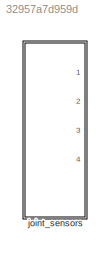
MODEL slx_32957a7d959d
KIND library
CONFIG AbsTol = auto
CONFIG EnableMultiTasking = off
CONFIG FixedStep = auto
CONFIG MaxStep = auto
CONFIG MinStep = auto
CONFIG RelTol = 1e-3
CONFIG SampleTimeConstraint = Unconstrained
CONFIG SolverName = VariableStepAuto
CONFIG StartTime = 0.0
CONFIG StopTime = 10.0
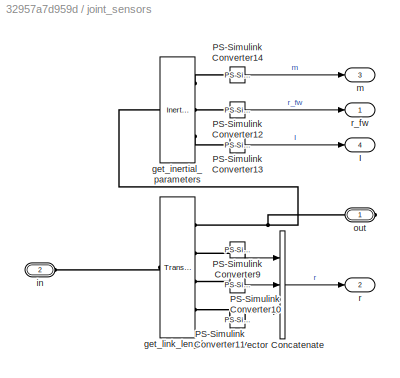
BLOCK [SubSystem] joint_sensors
  Ports = [0, 4, 0, 0, 0, 1, 1]
  RequestExecContextInheritance = off
BLOCK [Outport] joint_sensors/I
  Port = 4
BLOCK [Reference] joint_sensors/PS-Simulink Converter10  REF=nesl_utility/PS-Simulink
Converter
  Ports = [0, 1, 0, 0, 0, 1]
  SourceBlock = nesl_utility/PS-Simulink\nConverter
  SourceProductBaseCode = SS
  SourceType = PS-Simulink\nConverter
BLOCK [Reference] joint_sensors/PS-Simulink Converter11  REF=nesl_utility/PS-Simulink
Converter
  Ports = [0, 1, 0, 0, 0, 1]
  SourceBlock = nesl_utility/PS-Simulink\nConverter
  SourceProductBaseCode = SS
  SourceType = PS-Simulink\nConverter
BLOCK [Reference] joint_sensors/PS-Simulink Converter12  REF=nesl_utility/PS-Simulink
Converter
  Ports = [0, 1, 0, 0, 0, 1]
  SourceBlock = nesl_utility/PS-Simulink\nConverter
  SourceProductBaseCode = SS
  SourceType = PS-Simulink\nConverter
BLOCK [Reference] joint_sensors/PS-Simulink Converter13  REF=nesl_utility/PS-Simulink
Converter
  Ports = [0, 1, 0, 0, 0, 1]
  SourceBlock = nesl_utility/PS-Simulink\nConverter
  SourceProductBaseCode = SS
  SourceType = PS-Simulink\nConverter
BLOCK [Reference] joint_sensors/PS-Simulink Converter14  REF=nesl_utility/PS-Simulink
Converter
  Ports = [0, 1, 0, 0, 0, 1]
  SourceBlock = nesl_utility/PS-Simulink\nConverter
  SourceProductBaseCode = SS
  SourceType = PS-Simulink\nConverter
BLOCK [Reference] joint_sensors/PS-Simulink Converter9  REF=nesl_utility/PS-Simulink
Converter
  Ports = [0, 1, 0, 0, 0, 1]
  SourceBlock = nesl_utility/PS-Simulink\nConverter
  SourceProductBaseCode = SS
  SourceType = PS-Simulink\nConverter
BLOCK [Concatenate] joint_sensors/Vector Concatenate
  NumInputs = 3
  Ports = [3, 1]
BLOCK [Reference] joint_sensors/get_inertial_parameters  REF=sm_lib/Body Elements/Inertia Sensor
  Ports = [0, 0, 0, 0, 0, 1, 3]
  SourceBlock = sm_lib/Body Elements/Inertia Sensor
  SourceProductBaseCode = MS
  SourceType = Inertia Sensor
BLOCK [Reference] joint_sensors/get_link_lengths  REF=sm_lib/Frames and
Transforms/Transform
Sensor
  Ports = [0, 0, 0, 0, 0, 1, 4]
  SourceBlock = sm_lib/Frames and\nTransforms/Transform\nSensor
  SourceProductBaseCode = MS
  SourceType = Transform\nSensor
BLOCK [PMIOPort] joint_sensors/in
  Port = 2
  Side = Left
BLOCK [Outport] joint_sensors/m
  Port = 3
BLOCK [PMIOPort] joint_sensors/out
  Side = Right
BLOCK [Outport] joint_sensors/r
  Port = 2
BLOCK [Outport] joint_sensors/r_fw
LINE joint_sensors/PS-Simulink Converter10:1 -> joint_sensors/Vector Concatenate:2
LINE joint_sensors/PS-Simulink Converter11:1 -> joint_sensors/Vector Concatenate:3
LINE joint_sensors/PS-Simulink Converter12:1 -> joint_sensors/r_fw:1
LINE joint_sensors/PS-Simulink Converter13:1 -> joint_sensors/I:1
LINE joint_sensors/PS-Simulink Converter14:1 -> joint_sensors/m:1
LINE joint_sensors/PS-Simulink Converter9:1 -> joint_sensors/Vector Concatenate:1
LINE joint_sensors/Vector Concatenate:1 -> joint_sensors/r:1
PLINE joint_sensors/PS-Simulink Converter10:LConn1 -- joint_sensors/get_link_lengths:RConn3
PLINE joint_sensors/PS-Simulink Converter11:LConn1 -- joint_sensors/get_link_lengths:RConn4
PLINE joint_sensors/PS-Simulink Converter12:LConn1 -- joint_sensors/get_inertial_parameters:RConn2
PLINE joint_sensors/PS-Simulink Converter13:LConn1 -- joint_sensors/get_inertial_parameters:RConn3
PLINE joint_sensors/PS-Simulink Converter14:LConn1 -- joint_sensors/get_inertial_parameters:RConn1
PLINE joint_sensors/PS-Simulink Converter9:LConn1 -- joint_sensors/get_link_lengths:RConn2
PNET net1: joint_sensors/get_inertial_parameters:LConn1 -- joint_sensors/get_link_lengths:RConn1 -- joint_sensors/out:RConn1
PLINE joint_sensors/get_link_lengths:LConn1 -- joint_sensors/in:RConn1
note: PNET lines group multi-terminal physical nets as a canonical sorted terminal list (undirected conserving connections); 2-terminal nets keep the pairwise PLINE form
